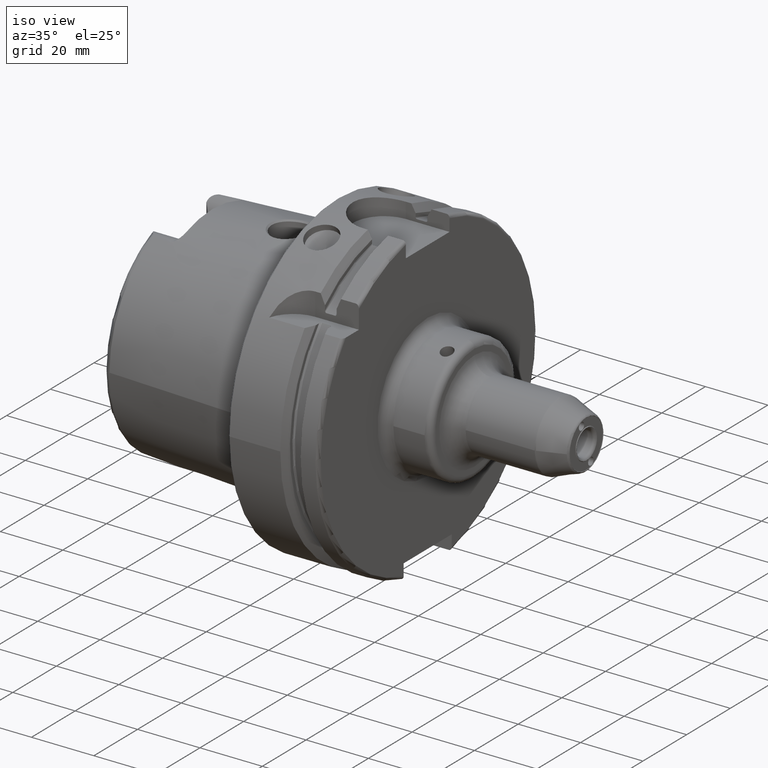
[diagram: clean part render]
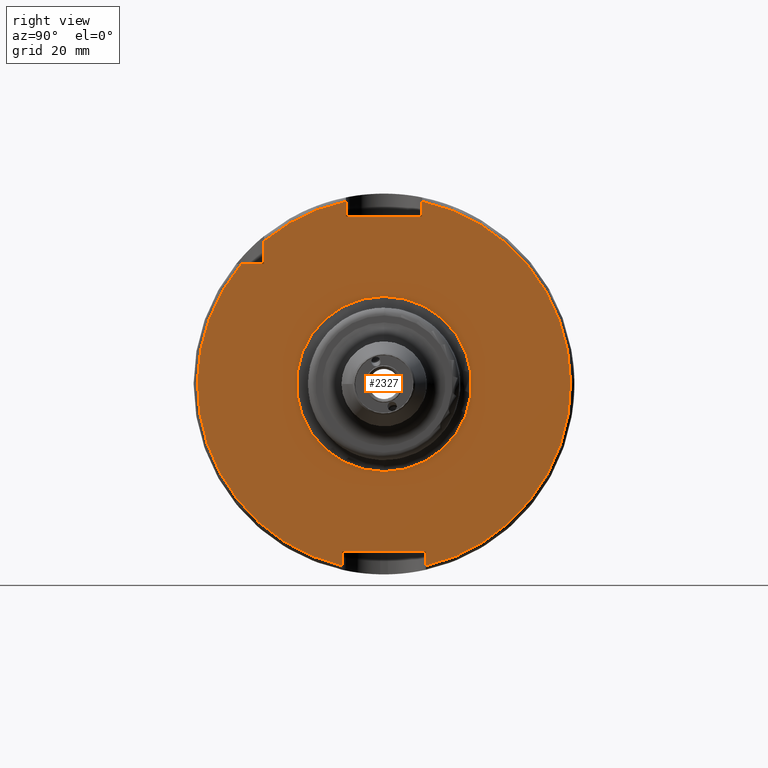
[diagram: tour spotlight — one face highlighted and labeled with its STEP entity id]
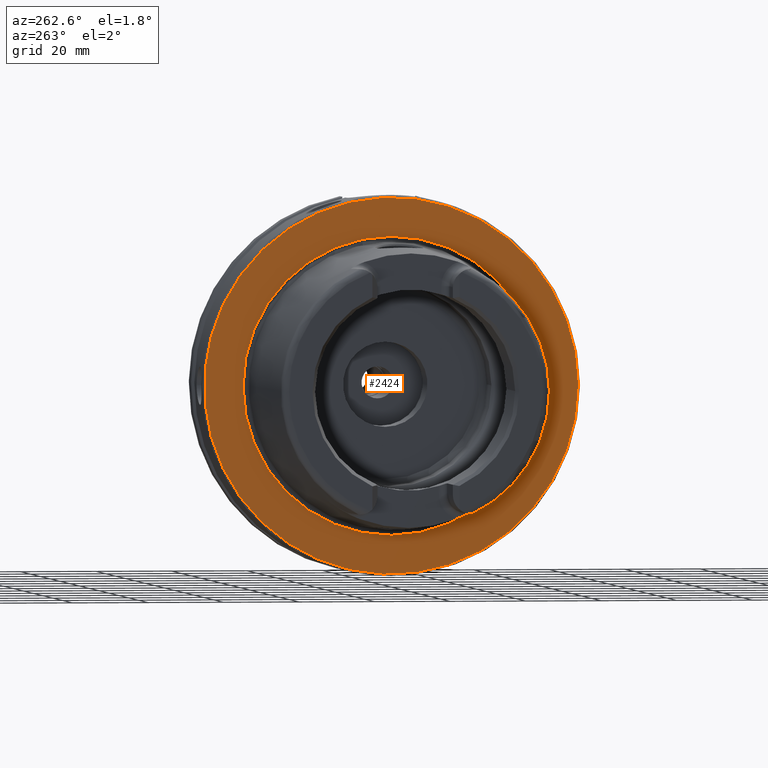
[diagram: tour spotlight — one face highlighted and labeled with its STEP entity id]
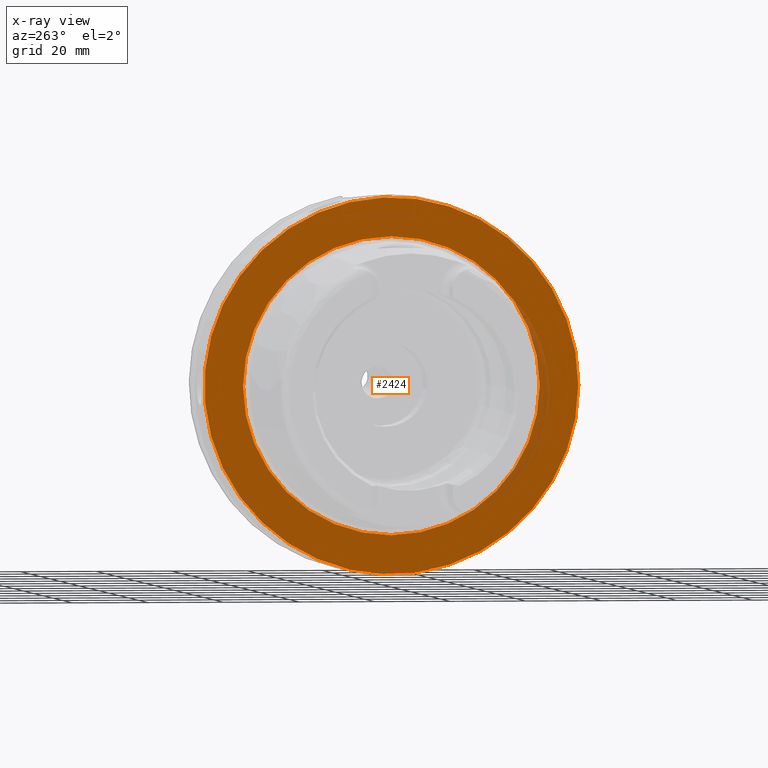
[diagram: x-ray of the same camera — body ghosted, this tour face saturated]
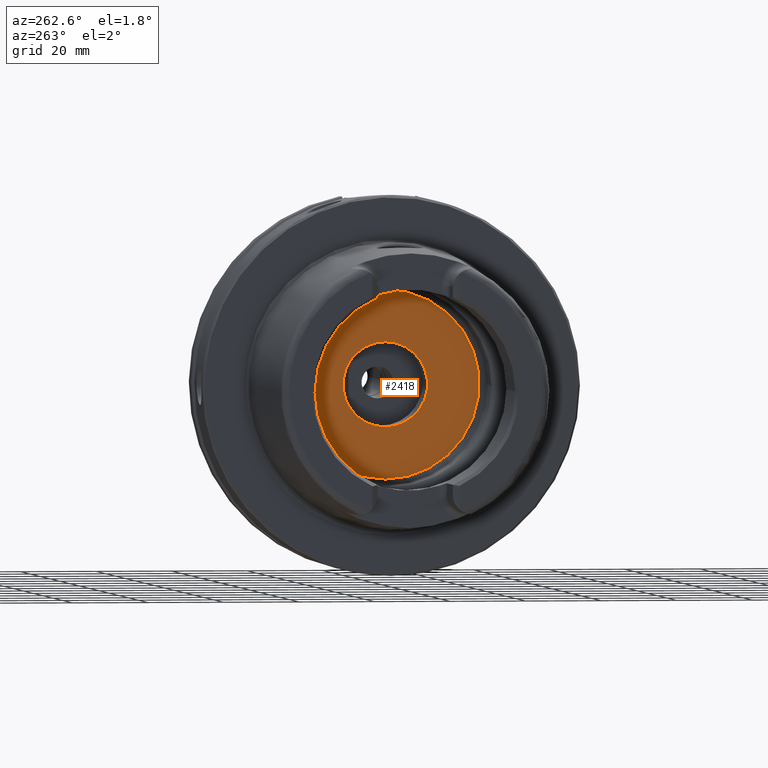
[diagram: tour spotlight — one face highlighted and labeled with its STEP entity id]
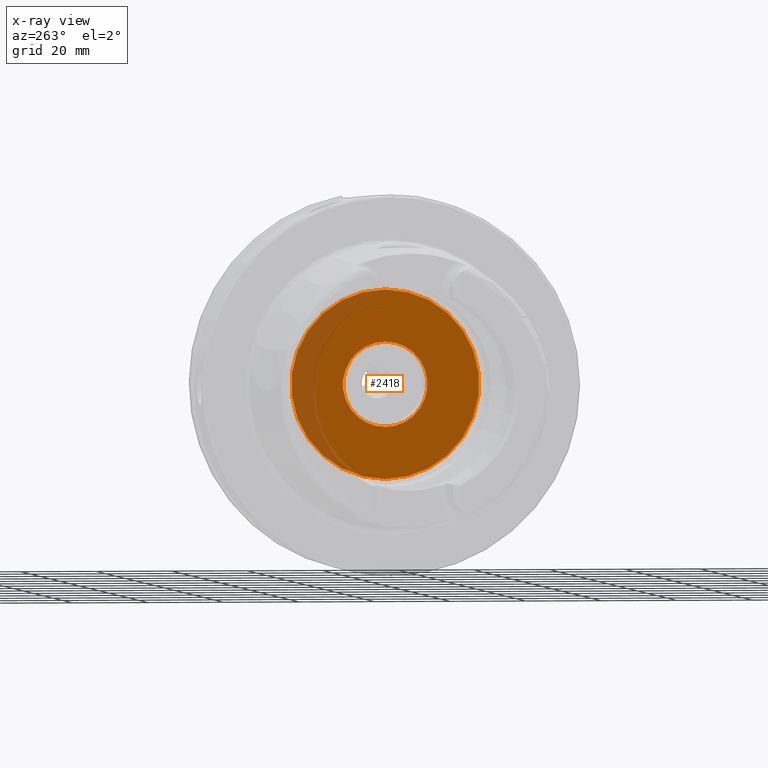
[diagram: x-ray of the same camera — body ghosted, this tour face saturated]
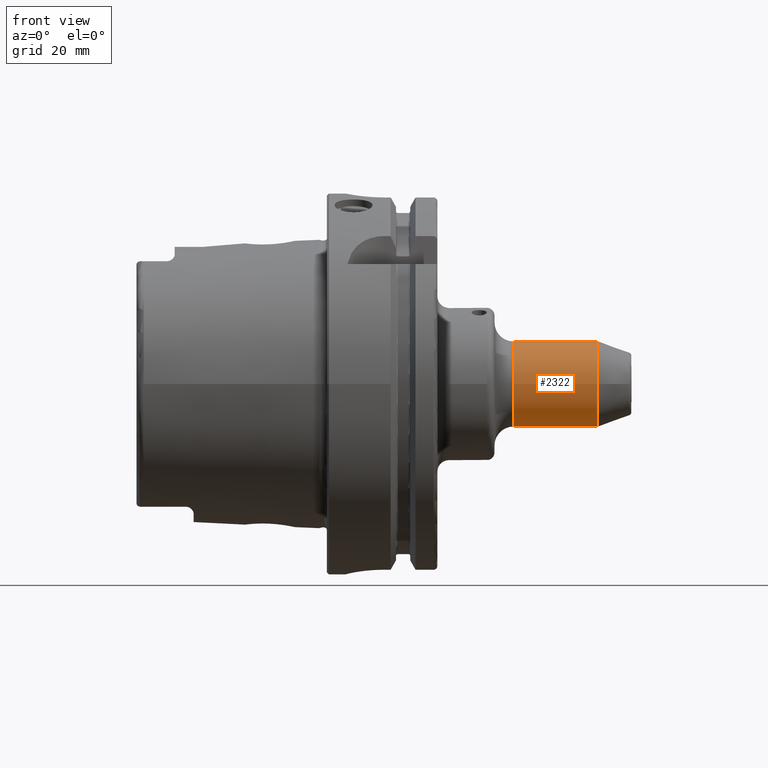
[diagram: tour spotlight — one face highlighted and labeled with its STEP entity id]
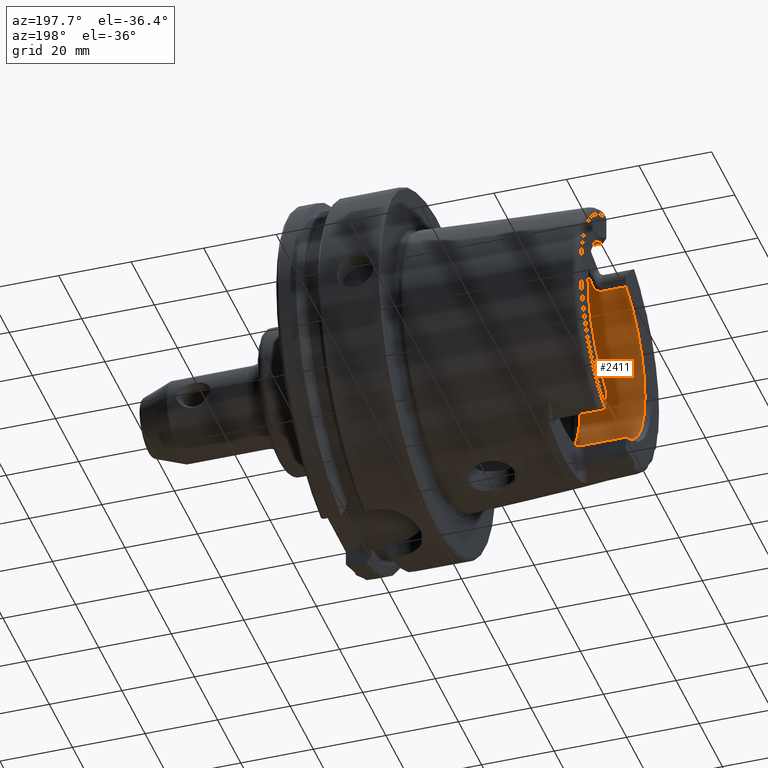
[diagram: tour spotlight — one face highlighted and labeled with its STEP entity id]
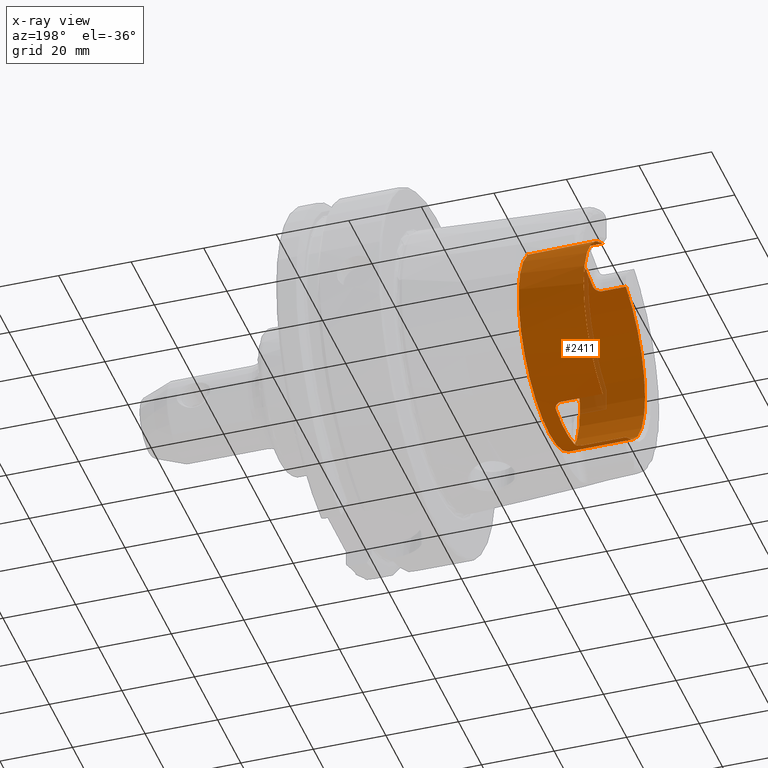
[diagram: x-ray of the same camera — body ghosted, this tour face saturated]
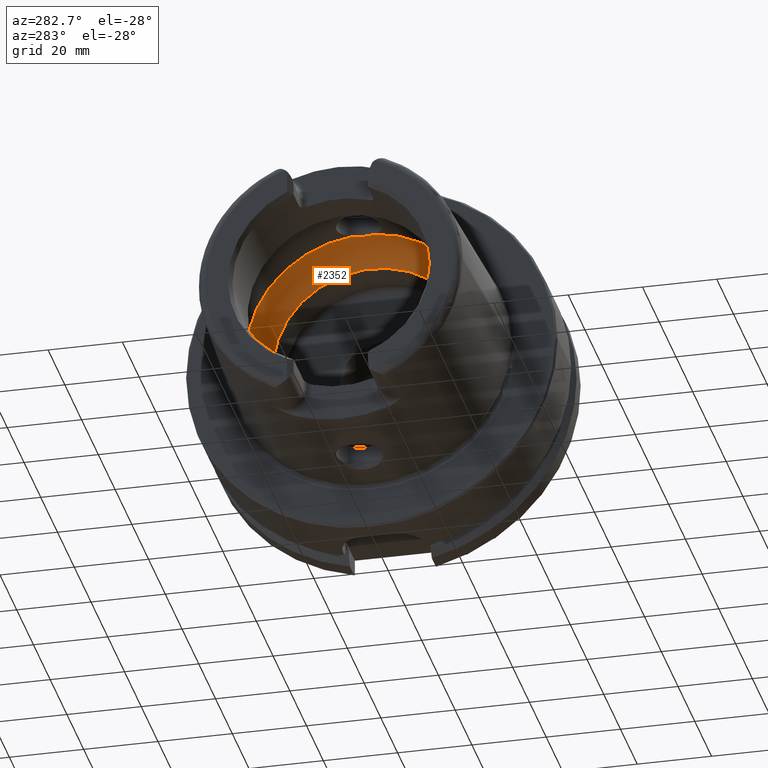
[diagram: tour spotlight — one face highlighted and labeled with its STEP entity id]
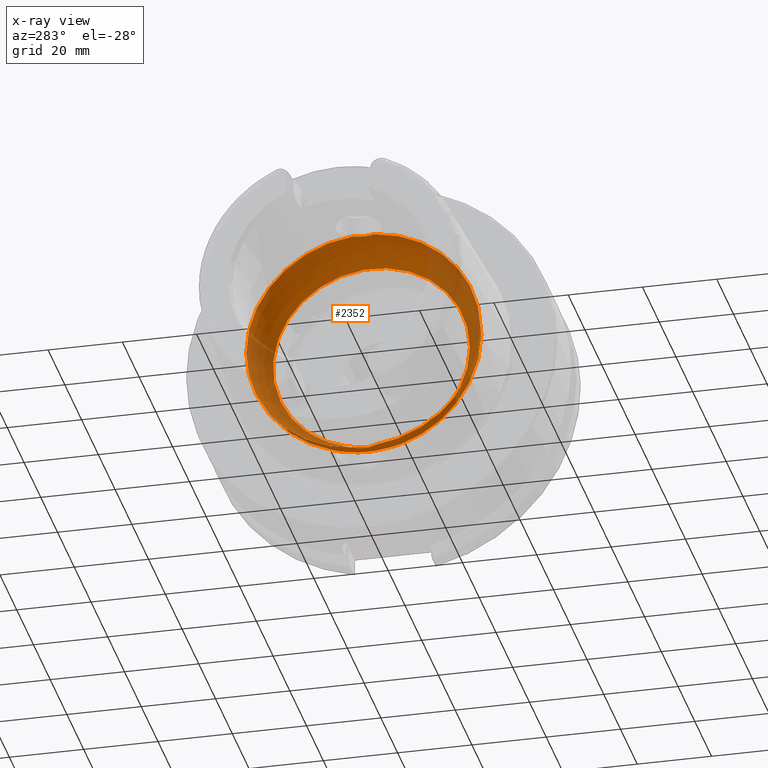
[diagram: x-ray of the same camera — body ghosted, this tour face saturated]
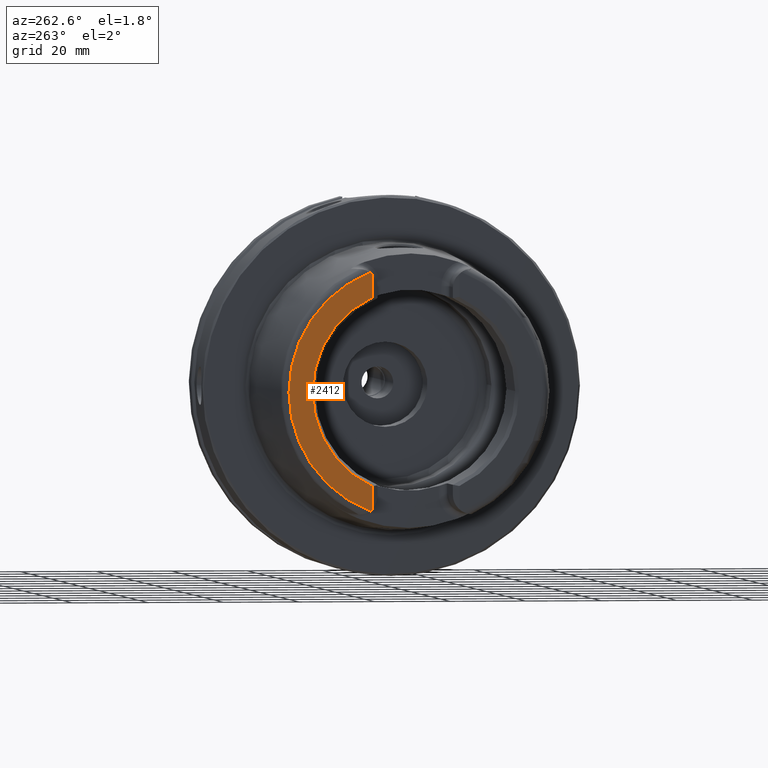
[diagram: tour spotlight — one face highlighted and labeled with its STEP entity id]
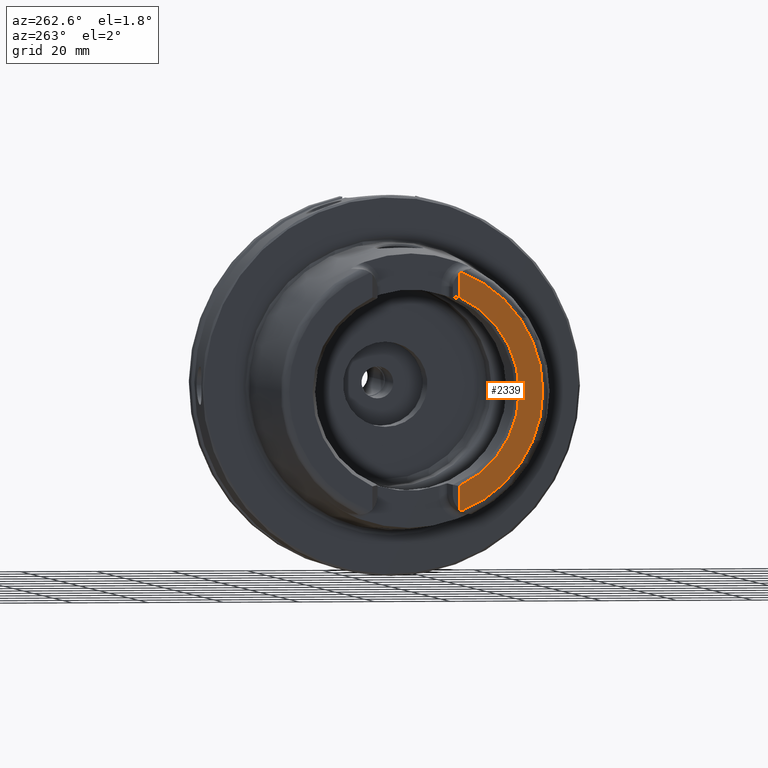
[diagram: tour spotlight — one face highlighted and labeled with its STEP entity id]
A machine part: a face-by-face anatomy tour. The part has 133 B-rep faces; the first image is the clean iso view, then the 8 largest visible faces are spotlighted one at a time (largest first), each with its STEP entity span.

Face 1 — right view, entity #2327. In plain terms, the highlighted planar face has unit normal (1, 0, 0).
Definition (entity closure, byte-faithful):
#196=LINE('',#3887,#316);
#197=LINE('',#3891,#317);
#198=LINE('',#3893,#318);
#199=LINE('',#3895,#319);
#200=LINE('',#3899,#320);
#201=LINE('',#3901,#321);
#202=LINE('',#3903,#322);
#203=LINE('',#3906,#323);
#316=VECTOR('',#2898,10.);
#317=VECTOR('',#2901,10.);
#318=VECTOR('',#2902,10.);
#319=VECTOR('',#2903,10.);
#320=VECTOR('',#2906,10.);
#321=VECTOR('',#2907,10.);
#322=VECTOR('',#2908,10.);
#323=VECTOR('',#2911,10.);
#448=FACE_BOUND('',#634,.T.);
#493=FACE_OUTER_BOUND('',#633,.T.);
#633=EDGE_LOOP('',(#1662,#1663,#1664,#1665,#1666,#1667,#1668,#1669,#1670,
#1671,#1672));
#634=EDGE_LOOP('',(#1673));
#789=CIRCLE('',#2521,23.);
#790=CIRCLE('',#2523,49.);
#791=CIRCLE('',#2524,49.);
#792=CIRCLE('',#2525,49.);
#955=VERTEX_POINT('',#3881);
#956=VERTEX_POINT('',#3885);
#957=VERTEX_POINT('',#3886);
#958=VERTEX_POINT('',#3888);
#959=VERTEX_POINT('',#3890);
#960=VERTEX_POINT('',#3892);
#961=VERTEX_POINT('',#3894);
#962=VERTEX_POINT('',#3896);
#963=VERTEX_POINT('',#3898);
#964=VERTEX_POINT('',#3900);
#965=VERTEX_POINT('',#3902);
#966=VERTEX_POINT('',#3904);
#1223=EDGE_CURVE('',#955,#955,#789,.T.);
#1224=EDGE_CURVE('',#956,#957,#196,.T.);
#1225=EDGE_CURVE('',#957,#958,#790,.T.);
#1226=EDGE_CURVE('',#958,#959,#197,.T.);
#1227=EDGE_CURVE('',#959,#960,#198,.T.);
#1228=EDGE_CURVE('',#960,#961,#199,.T.);
#1229=EDGE_CURVE('',#961,#962,#791,.T.);
#1230=EDGE_CURVE('',#962,#963,#200,.T.);
#1231=EDGE_CURVE('',#963,#964,#201,.T.);
#1232=EDGE_CURVE('',#964,#965,#202,.T.);
#1233=EDGE_CURVE('',#965,#966,#792,.T.);
#1234=EDGE_CURVE('',#966,#956,#203,.T.);
#1662=ORIENTED_EDGE('',*,*,#1224,.T.);
#1663=ORIENTED_EDGE('',*,*,#1225,.T.);
#1664=ORIENTED_EDGE('',*,*,#1226,.T.);
#1665=ORIENTED_EDGE('',*,*,#1227,.T.);
#1666=ORIENTED_EDGE('',*,*,#1228,.T.);
#1667=ORIENTED_EDGE('',*,*,#1229,.T.);
#1668=ORIENTED_EDGE('',*,*,#1230,.T.);
#1669=ORIENTED_EDGE('',*,*,#1231,.T.);
#1670=ORIENTED_EDGE('',*,*,#1232,.T.);
#1671=ORIENTED_EDGE('',*,*,#1233,.T.);
#1672=ORIENTED_EDGE('',*,*,#1234,.T.);
#1673=ORIENTED_EDGE('',*,*,#1223,.F.);
#2268=PLANE('',#2522);
#2327=ADVANCED_FACE('',(#493,#448),#2268,.T.);
#2521=AXIS2_PLACEMENT_3D('',#3883,#2894,#2895);
#2522=AXIS2_PLACEMENT_3D('',#3884,#2896,#2897);
#2523=AXIS2_PLACEMENT_3D('',#3889,#2899,#2900);
#2524=AXIS2_PLACEMENT_3D('',#3897,#2904,#2905);
#2525=AXIS2_PLACEMENT_3D('',#3905,#2909,#2910);
#2894=DIRECTION('center_axis',(1.,0.,0.));
#2895=DIRECTION('ref_axis',(0.,-1.,-1.22464679914735E-16));
#2896=DIRECTION('center_axis',(1.,0.,0.));
#2897=DIRECTION('ref_axis',(0.,0.,-1.));
#2898=DIRECTION('',(0.,-1.,0.));
#2899=DIRECTION('center_axis',(1.,0.,0.));
#2900=DIRECTION('ref_axis',(0.,0.,-1.));
#2901=DIRECTION('',(0.,0.,1.));
#2902=DIRECTION('',(0.,1.,0.));
#2903=DIRECTION('',(0.,0.,-1.));
#2904=DIRECTION('center_axis',(1.,0.,0.));
#2905=DIRECTION('ref_axis',(0.,0.,-1.));
#2906=DIRECTION('',(0.,0.,-1.));
#2907=DIRECTION('',(0.,-1.,0.));
#2908=DIRECTION('',(0.,0.,1.));
#2909=DIRECTION('center_axis',(1.,0.,0.));
#2910=DIRECTION('ref_axis',(0.,0.,-1.));
#2911=DIRECTION('',(0.,0.,-1.));
#3881=CARTESIAN_POINT('',(29.,-2.81668763803891E-15,-23.));
#3883=CARTESIAN_POINT('Origin',(29.,0.,0.));
#3884=CARTESIAN_POINT('Origin',(29.,0.,0.));
#3885=CARTESIAN_POINT('',(29.,-31.5,31.5));
#3886=CARTESIAN_POINT('',(29.,-37.5333185316726,31.5));
#3887=CARTESIAN_POINT('',(29.,-18.25,31.5));
#3888=CARTESIAN_POINT('',(29.,-11.,-47.7493455452533));
#3889=CARTESIAN_POINT('Origin',(29.,0.,0.));
#3890=CARTESIAN_POINT('',(29.,-11.,-44.));
#3891=CARTESIAN_POINT('',(29.,-11.,-22.));
#3892=CARTESIAN_POINT('',(29.,11.,-44.));
#3893=CARTESIAN_POINT('',(29.,-5.55111512312578E-16,-44.));
#3894=CARTESIAN_POINT('',(29.,11.,-47.7493455452533));
#3895=CARTESIAN_POINT('',(29.,11.,-22.));
#3896=CARTESIAN_POINT('',(29.,10.,47.9687398208458));
#3897=CARTESIAN_POINT('Origin',(29.,0.,0.));
#3898=CARTESIAN_POINT('',(29.,10.,44.));
#3899=CARTESIAN_POINT('',(29.,10.,22.));
#3900=CARTESIAN_POINT('',(29.,-10.,44.));
#3901=CARTESIAN_POINT('',(29.,0.,44.));
#3902=CARTESIAN_POINT('',(29.,-10.,47.9687398208458));
#3903=CARTESIAN_POINT('',(29.,-10.,22.));
#3904=CARTESIAN_POINT('',(29.,-31.5,37.5333185316726));
#3905=CARTESIAN_POINT('Origin',(29.,0.,0.));
#3906=CARTESIAN_POINT('',(29.,-31.5,15.75));

Face 2 — auxiliary view, entity #2424. An x-ray twin of the same camera follows (body ghosted, this face saturated) — the face is partly hidden behind the body. In plain terms, the highlighted planar face has unit normal (-1, 0, 0).
Definition (entity closure, byte-faithful):
#458=FACE_BOUND('',#741,.T.);
#590=FACE_OUTER_BOUND('',#740,.T.);
#740=EDGE_LOOP('',(#2215));
#741=EDGE_LOOP('',(#2216));
#892=CIRCLE('',#2727,39.2747800249997);
#893=CIRCLE('',#2729,49.5);
#1144=VERTEX_POINT('',#5396);
#1145=VERTEX_POINT('',#5400);
#1506=EDGE_CURVE('',#1144,#1144,#892,.T.);
#1507=EDGE_CURVE('',#1145,#1145,#893,.T.);
#2215=ORIENTED_EDGE('',*,*,#1507,.F.);
#2216=ORIENTED_EDGE('',*,*,#1506,.T.);
#2300=PLANE('',#2728);
#2424=ADVANCED_FACE('',(#590,#458),#2300,.T.);
#2727=AXIS2_PLACEMENT_3D('',#5398,#3406,#3407);
#2728=AXIS2_PLACEMENT_3D('',#5399,#3408,#3409);
#2729=AXIS2_PLACEMENT_3D('',#5401,#3410,#3411);
#3406=DIRECTION('center_axis',(1.,0.,0.));
#3407=DIRECTION('ref_axis',(0.,0.,-1.));
#3408=DIRECTION('center_axis',(-1.,0.,0.));
#3409=DIRECTION('ref_axis',(0.,0.,1.));
#3410=DIRECTION('center_axis',(1.,0.,0.));
#3411=DIRECTION('ref_axis',(0.,0.,-1.));
#5396=CARTESIAN_POINT('',(-1.04950770296597E-15,-39.2747800249997,-4.80977336448322E-15));
#5398=CARTESIAN_POINT('Origin',(0.,0.,0.));
#5399=CARTESIAN_POINT('Origin',(0.,49.5,0.));
#5400=CARTESIAN_POINT('',(1.28369537222284E-15,-49.5,-6.0620016557794E-15));
#5401=CARTESIAN_POINT('Origin',(0.,0.,0.));

Face 3 — auxiliary view, entity #2418. An x-ray twin of the same camera follows (body ghosted, this face saturated) — the face is partly hidden behind the body. In plain terms, the highlighted planar face has unit normal (1, 0, 0).
Definition (entity closure, byte-faithful):
#457=FACE_BOUND('',#734,.T.);
#584=FACE_OUTER_BOUND('',#733,.T.);
#733=EDGE_LOOP('',(#2185));
#734=EDGE_LOOP('',(#2186));
#876=CIRCLE('',#2701,11.188101);
#883=CIRCLE('',#2713,24.9);
#1131=VERTEX_POINT('',#5353);
#1137=VERTEX_POINT('',#5373);
#1485=EDGE_CURVE('',#1131,#1131,#876,.T.);
#1494=EDGE_CURVE('',#1137,#1137,#883,.T.);
#2185=ORIENTED_EDGE('',*,*,#1494,.T.);
#2186=ORIENTED_EDGE('',*,*,#1485,.T.);
#2299=PLANE('',#2712);
#2418=ADVANCED_FACE('',(#584,#457),#2299,.F.);
#2701=AXIS2_PLACEMENT_3D('',#5354,#3349,#3350);
#2712=AXIS2_PLACEMENT_3D('',#5372,#3373,#3374);
#2713=AXIS2_PLACEMENT_3D('',#5374,#3375,#3376);
#3349=DIRECTION('center_axis',(1.,0.,0.));
#3350=DIRECTION('ref_axis',(0.,0.,1.));
#3373=DIRECTION('center_axis',(1.,0.,0.));
#3374=DIRECTION('ref_axis',(0.,0.,-1.));
#3375=DIRECTION('center_axis',(-1.,0.,0.));
#3376=DIRECTION('ref_axis',(0.,0.,1.));
#5353=CARTESIAN_POINT('',(12.5,-1.37014720781873E-15,-11.188101));
#5354=CARTESIAN_POINT('Origin',(12.5,0.,0.));
#5372=CARTESIAN_POINT('Origin',(12.5,24.9,0.));
#5373=CARTESIAN_POINT('',(12.5,-3.04937052987691E-15,-24.9));
#5374=CARTESIAN_POINT('Origin',(12.5,0.,0.));

Face 4 — front view, entity #2322. In plain terms, the highlighted cylindrical surface (bore or boss wall) has radius 11.176 mm, axis along (1, 0, 0).
Definition (entity closure, byte-faithful):
#75=B_SPLINE_CURVE_WITH_KNOTS('',3,(#3756,#3757,#3758,#3759,#3760,#3761,
#3762,#3763,#3764,#3765),.UNSPECIFIED.,.F.,.F.,(4,2,2,2,4),(0.,0.160450408590257,
0.320900817180515,0.488377285899144,0.655853754617773),.UNSPECIFIED.);
#76=B_SPLINE_CURVE_WITH_KNOTS('',3,(#3766,#3767,#3768,#3769,#3770,#3771,
#3772,#3773,#3774,#3775,#3776,#3777,#3778,#3779,#3780,#3781,#3782,#3783,
#3784,#3785,#3786,#3787,#3788,#3789,#3790,#3791),.UNSPECIFIED.,.F.,.F.,
(4,2,2,2,2,2,2,2,2,2,2,2,4),(0.655853754617773,0.823330223336401,0.99080669205503,
1.15125710064529,1.31170750923555,1.4721579178258,1.63260832641606,1.80008479513469,
1.96756126385332,2.13503773257195,2.30251420129058,2.46296460988083,2.62341501847109),
 .UNSPECIFIED.);
#145=CYLINDRICAL_SURFACE('',#2509,11.176);
#195=LINE('',#3867,#315);
#315=VECTOR('',#2871,11.176);
#446=FACE_BOUND('',#627,.T.);
#488=FACE_OUTER_BOUND('',#626,.T.);
#626=EDGE_LOOP('',(#1636,#1637,#1638,#1639,#1640,#1641));
#627=EDGE_LOOP('',(#1642,#1643));
#780=CIRCLE('',#2507,11.176);
#781=CIRCLE('',#2508,11.176);
#782=CIRCLE('',#2510,11.176);
#783=CIRCLE('',#2511,11.176);
#939=VERTEX_POINT('',#3754);
#940=VERTEX_POINT('',#3755);
#949=VERTEX_POINT('',#3860);
#950=VERTEX_POINT('',#3862);
#951=VERTEX_POINT('',#3866);
#952=VERTEX_POINT('',#3868);
#1197=EDGE_CURVE('',#939,#940,#75,.T.);
#1198=EDGE_CURVE('',#940,#939,#76,.T.);
#1213=EDGE_CURVE('',#949,#950,#780,.T.);
#1214=EDGE_CURVE('',#950,#949,#781,.T.);
#1215=EDGE_CURVE('',#950,#951,#195,.T.);
#1216=EDGE_CURVE('',#952,#951,#782,.T.);
#1217=EDGE_CURVE('',#951,#952,#783,.T.);
#1636=ORIENTED_EDGE('',*,*,#1214,.F.);
#1637=ORIENTED_EDGE('',*,*,#1215,.T.);
#1638=ORIENTED_EDGE('',*,*,#1216,.F.);
#1639=ORIENTED_EDGE('',*,*,#1217,.F.);
#1640=ORIENTED_EDGE('',*,*,#1215,.F.);
#1641=ORIENTED_EDGE('',*,*,#1213,.F.);
#1642=ORIENTED_EDGE('',*,*,#1197,.T.);
#1643=ORIENTED_EDGE('',*,*,#1198,.T.);
#2322=ADVANCED_FACE('',(#488,#446),#145,.T.);
#2507=AXIS2_PLACEMENT_3D('',#3863,#2865,#2866);
#2508=AXIS2_PLACEMENT_3D('',#3864,#2867,#2868);
#2509=AXIS2_PLACEMENT_3D('',#3865,#2869,#2870);
#2510=AXIS2_PLACEMENT_3D('',#3869,#2872,#2873);
#2511=AXIS2_PLACEMENT_3D('',#3870,#2874,#2875);
#2865=DIRECTION('center_axis',(1.,0.,0.));
#2866=DIRECTION('ref_axis',(0.,-1.,1.83697019872103E-16));
#2867=DIRECTION('center_axis',(1.,0.,0.));
#2868=DIRECTION('ref_axis',(0.,-1.,1.83697019872103E-16));
#2869=DIRECTION('center_axis',(1.,0.,0.));
#2870=DIRECTION('ref_axis',(0.,1.,0.));
#2871=DIRECTION('',(-1.,0.,0.));
#2872=DIRECTION('center_axis',(-1.,0.,0.));
#2873=DIRECTION('ref_axis',(0.,-1.,1.83697019872103E-16));
#2874=DIRECTION('center_axis',(-1.,0.,0.));
#2875=DIRECTION('ref_axis',(0.,-1.,1.83697019872103E-16));
#3754=CARTESIAN_POINT('',(64.,10.4550468618303,3.94904686183032));
#3755=CARTESIAN_POINT('',(59.33,11.176,-5.71910055201813E-16));
#3756=CARTESIAN_POINT('Ctrl Pts',(64.,10.4550468618303,3.94904686183032));
#3757=CARTESIAN_POINT('Ctrl Pts',(63.4651653046991,10.4550468618303,3.94904686183032));
#3758=CARTESIAN_POINT('Ctrl Pts',(62.8892851132928,10.4878494051715,3.86556716131248));
#3759=CARTESIAN_POINT('Ctrl Pts',(61.8046622676809,10.6107140420064,3.51430576885846));
#3760=CARTESIAN_POINT('Ctrl Pts',(61.2957078850016,10.6991887742038,3.2466244540956));
#3761=CARTESIAN_POINT('Ctrl Pts',(60.438744735932,10.8768578052469,2.59172543091553));
#3762=CARTESIAN_POINT('Ctrl Pts',(60.035033016036,10.979393649552,2.14936439188367));
#3763=CARTESIAN_POINT('Ctrl Pts',(59.480112306603,11.1302692360648,1.13312111218164));
#3764=CARTESIAN_POINT('Ctrl Pts',(59.33,11.176,0.558254895728764));
#3765=CARTESIAN_POINT('Ctrl Pts',(59.33,11.176,1.52655665885959E-15));
#3766=CARTESIAN_POINT('Ctrl Pts',(59.33,11.176,9.0205620750794E-16));
#3767=CARTESIAN_POINT('Ctrl Pts',(59.33,11.176,-0.558254895728762));
#3768=CARTESIAN_POINT('Ctrl Pts',(59.480112306603,11.1302692360648,-1.13312111218164));
#3769=CARTESIAN_POINT('Ctrl Pts',(60.035033016036,10.979393649552,-2.14936439188367));
#3770=CARTESIAN_POINT('Ctrl Pts',(60.438744735932,10.8768578052469,-2.59172543091553));
#3771=CARTESIAN_POINT('Ctrl Pts',(61.2957078850016,10.6991887742038,-3.2466244540956));
#3772=CARTESIAN_POINT('Ctrl Pts',(61.8046622676809,10.6107140420064,-3.51430576885846));
#3773=CARTESIAN_POINT('Ctrl Pts',(62.8892851132928,10.4878494051715,-3.86556716131248));
#3774=CARTESIAN_POINT('Ctrl Pts',(63.4651653046991,10.4550468618303,-3.94904686183032));
#3775=CARTESIAN_POINT('Ctrl Pts',(64.5348346953009,10.4550468618303,-3.94904686183032));
#3776=CARTESIAN_POINT('Ctrl Pts',(65.1107148867072,10.4878494051715,-3.86556716131248));
#3777=CARTESIAN_POINT('Ctrl Pts',(66.1953377323191,10.6107140420064,-3.51430576885846));
#3778=CARTESIAN_POINT('Ctrl Pts',(66.7042921149984,10.6991887742038,-3.2466244540956));
#3779=CARTESIAN_POINT('Ctrl Pts',(67.561255264068,10.8768578052469,-2.59172543091553));
#3780=CARTESIAN_POINT('Ctrl Pts',(67.964966983964,10.979393649552,-2.14936439188367));
#3781=CARTESIAN_POINT('Ctrl Pts',(68.519887693397,11.1302692360648,-1.13312111218164));
#3782=CARTESIAN_POINT('Ctrl Pts',(68.67,11.176,-0.558254895728764));
#3783=CARTESIAN_POINT('Ctrl Pts',(68.67,11.176,0.558254895728763));
#3784=CARTESIAN_POINT('Ctrl Pts',(68.519887693397,11.1302692360648,1.13312111218164));
#3785=CARTESIAN_POINT('Ctrl Pts',(67.964966983964,10.979393649552,2.14936439188367));
#3786=CARTESIAN_POINT('Ctrl Pts',(67.561255264068,10.8768578052469,2.59172543091553));
#3787=CARTESIAN_POINT('Ctrl Pts',(66.7042921149984,10.6991887742038,3.2466244540956));
#3788=CARTESIAN_POINT('Ctrl Pts',(66.1953377323191,10.6107140420064,3.51430576885846));
#3789=CARTESIAN_POINT('Ctrl Pts',(65.1107148867072,10.4878494051715,3.86556716131248));
#3790=CARTESIAN_POINT('Ctrl Pts',(64.5348346953009,10.4550468618303,3.94904686183032));
#3791=CARTESIAN_POINT('Ctrl Pts',(64.,10.4550468618303,3.94904686183032));
#3860=CARTESIAN_POINT('',(71.0976847351036,-1.36866526272708E-15,11.176));
#3862=CARTESIAN_POINT('',(71.0976847351036,-11.176,-1.36866526272708E-15));
#3863=CARTESIAN_POINT('Origin',(71.0976847351036,0.,0.));
#3864=CARTESIAN_POINT('Origin',(71.0976847351036,0.,0.));
#3865=CARTESIAN_POINT('Origin',(57.637005857906,0.,0.));
#3866=CARTESIAN_POINT('',(49.,-11.176,-1.36866526272708E-15));
#3867=CARTESIAN_POINT('',(57.637005857906,-11.176,-1.36866526272708E-15));
#3868=CARTESIAN_POINT('',(49.,-1.36866526272708E-15,11.176));
#3869=CARTESIAN_POINT('Origin',(49.,0.,0.));
#3870=CARTESIAN_POINT('Origin',(49.,0.,0.));

Face 5 — auxiliary view, entity #2411. An x-ray twin of the same camera follows (body ghosted, this face saturated) — the face is partly hidden behind the body. In plain terms, the highlighted cylindrical surface (bore or boss wall) has radius 26.5 mm, axis along (-1, 0, 0).
Definition (entity closure, byte-faithful):
#132=B_SPLINE_CURVE_WITH_KNOTS('',3,(#5236,#5237,#5238,#5239,#5240,#5241,
#5242,#5243,#5244,#5245),.UNSPECIFIED.,.F.,.F.,(4,2,2,2,4),(0.307245873696209,
0.387318131676521,0.467390389656833,0.542677307505841,0.617964225354849),
 .UNSPECIFIED.);
#133=B_SPLINE_CURVE_WITH_KNOTS('',3,(#5254,#5255,#5256,#5257,#5258,#5259,
#5260,#5261,#5262,#5263),.UNSPECIFIED.,.F.,.F.,(4,2,2,2,4),(0.61796422535485,
0.694491364966707,0.771018504578565,0.849854597041439,0.928690689504313),
 .UNSPECIFIED.);
#134=B_SPLINE_CURVE_WITH_KNOTS('',3,(#5276,#5277,#5278,#5279,#5280,#5281,
#5282,#5283,#5284,#5285),.UNSPECIFIED.,.F.,.F.,(4,2,2,2,4),(0.617964225354849,
0.693251143203857,0.768538061052865,0.848610319033177,0.928682577013489),
 .UNSPECIFIED.);
#135=B_SPLINE_CURVE_WITH_KNOTS('',3,(#5305,#5306,#5307,#5308,#5309,#5310,
#5311,#5312,#5313,#5314),.UNSPECIFIED.,.F.,.F.,(4,2,2,2,4),(0.307245873696209,
0.387318131676521,0.467390389656833,0.542677307505841,0.617964225354849),
 .UNSPECIFIED.);
#173=CYLINDRICAL_SURFACE('',#2696,26.5);
#215=LINE('',#4020,#335);
#223=LINE('',#4095,#343);
#227=LINE('',#4159,#347);
#286=LINE('',#5301,#406);
#290=LINE('',#5349,#410);
#335=VECTOR('',#2951,10.);
#343=VECTOR('',#2997,10.);
#347=VECTOR('',#3019,10.);
#406=VECTOR('',#3298,10.);
#410=VECTOR('',#3342,26.5);
#577=FACE_OUTER_BOUND('',#724,.T.);
#724=EDGE_LOOP('',(#2144,#2145,#2146,#2147,#2148,#2149,#2150,#2151,#2152,
#2153,#2154,#2155,#2156,#2157,#2158,#2159,#2160));
#801=CIRCLE('',#2550,26.5);
#802=CIRCLE('',#2551,26.5);
#865=CIRCLE('',#2675,26.5);
#870=CIRCLE('',#2687,26.5);
#871=CIRCLE('',#2690,26.5);
#874=CIRCLE('',#2697,26.5);
#875=CIRCLE('',#2698,26.5);
#979=VERTEX_POINT('',#4010);
#982=VERTEX_POINT('',#4018);
#991=VERTEX_POINT('',#4067);
#993=VERTEX_POINT('',#4073);
#994=VERTEX_POINT('',#4075);
#1000=VERTEX_POINT('',#4093);
#1006=VERTEX_POINT('',#4126);
#1011=VERTEX_POINT('',#4158);
#1118=VERTEX_POINT('',#5234);
#1120=VERTEX_POINT('',#5253);
#1124=VERTEX_POINT('',#5274);
#1125=VERTEX_POINT('',#5275);
#1127=VERTEX_POINT('',#5295);
#1129=VERTEX_POINT('',#5346);
#1130=VERTEX_POINT('',#5347);
#1256=EDGE_CURVE('',#979,#982,#215,.T.);
#1269=EDGE_CURVE('',#993,#994,#801,.T.);
#1270=EDGE_CURVE('',#994,#991,#802,.T.);
#1279=EDGE_CURVE('',#993,#1000,#223,.T.);
#1292=EDGE_CURVE('',#1011,#1006,#227,.T.);
#1450=EDGE_CURVE('',#1118,#1000,#132,.T.);
#1454=EDGE_CURVE('',#1011,#1120,#133,.T.);
#1460=EDGE_CURVE('',#1124,#1125,#134,.T.);
#1466=EDGE_CURVE('',#1127,#1125,#865,.T.);
#1469=EDGE_CURVE('',#1124,#991,#286,.T.);
#1472=EDGE_CURVE('',#1127,#982,#135,.T.);
#1476=EDGE_CURVE('',#1118,#1120,#870,.T.);
#1478=EDGE_CURVE('',#979,#1006,#871,.T.);
#1482=EDGE_CURVE('',#1129,#1130,#874,.T.);
#1483=EDGE_CURVE('',#1129,#994,#290,.T.);
#1484=EDGE_CURVE('',#1130,#1129,#875,.T.);
#2144=ORIENTED_EDGE('',*,*,#1482,.F.);
#2145=ORIENTED_EDGE('',*,*,#1483,.T.);
#2146=ORIENTED_EDGE('',*,*,#1269,.F.);
#2147=ORIENTED_EDGE('',*,*,#1279,.T.);
#2148=ORIENTED_EDGE('',*,*,#1450,.F.);
#2149=ORIENTED_EDGE('',*,*,#1476,.T.);
#2150=ORIENTED_EDGE('',*,*,#1454,.F.);
#2151=ORIENTED_EDGE('',*,*,#1292,.T.);
#2152=ORIENTED_EDGE('',*,*,#1478,.F.);
#2153=ORIENTED_EDGE('',*,*,#1256,.T.);
#2154=ORIENTED_EDGE('',*,*,#1472,.F.);
#2155=ORIENTED_EDGE('',*,*,#1466,.T.);
#2156=ORIENTED_EDGE('',*,*,#1460,.F.);
#2157=ORIENTED_EDGE('',*,*,#1469,.T.);
#2158=ORIENTED_EDGE('',*,*,#1270,.F.);
#2159=ORIENTED_EDGE('',*,*,#1483,.F.);
#2160=ORIENTED_EDGE('',*,*,#1484,.F.);
#2411=ADVANCED_FACE('',(#577),#173,.F.);
#2550=AXIS2_PLACEMENT_3D('',#4076,#2975,#2976);
#2551=AXIS2_PLACEMENT_3D('',#4077,#2977,#2978);
#2675=AXIS2_PLACEMENT_3D('',#5296,#3291,#3292);
#2687=AXIS2_PLACEMENT_3D('',#5323,#3319,#3320);
#2690=AXIS2_PLACEMENT_3D('',#5338,#3325,#3326);
#2696=AXIS2_PLACEMENT_3D('',#5345,#3338,#3339);
#2697=AXIS2_PLACEMENT_3D('',#5348,#3340,#3341);
#2698=AXIS2_PLACEMENT_3D('',#5350,#3343,#3344);
#2951=DIRECTION('',(1.,0.,0.));
#2975=DIRECTION('center_axis',(1.,0.,0.));
#2976=DIRECTION('ref_axis',(0.,-1.,0.));
#2977=DIRECTION('center_axis',(1.,0.,0.));
#2978=DIRECTION('ref_axis',(0.,-1.,0.));
#2997=DIRECTION('',(1.,0.,0.));
#3019=DIRECTION('',(-1.,0.,0.));
#3291=DIRECTION('center_axis',(-1.,0.,0.));
#3292=DIRECTION('ref_axis',(0.,1.,0.));
#3298=DIRECTION('',(-1.,0.,0.));
#3319=DIRECTION('center_axis',(-1.,0.,0.));
#3320=DIRECTION('ref_axis',(0.,1.,0.));
#3325=DIRECTION('center_axis',(1.,0.,0.));
#3326=DIRECTION('ref_axis',(0.,-1.,0.));
#3338=DIRECTION('center_axis',(-1.,0.,0.));
#3339=DIRECTION('ref_axis',(0.,1.,0.));
#3340=DIRECTION('center_axis',(-1.,0.,0.));
#3341=DIRECTION('ref_axis',(0.,0.,1.));
#3342=DIRECTION('',(-1.,0.,0.));
#3343=DIRECTION('center_axis',(-1.,0.,0.));
#3344=DIRECTION('ref_axis',(0.,0.,1.));
#4010=CARTESIAN_POINT('',(-48.5,10.01,-24.5367051577835));
#4018=CARTESIAN_POINT('',(-37.,10.01,-24.5367051577835));
#4020=CARTESIAN_POINT('',(-40.2903629710818,10.01,-24.5367051577835));
#4067=CARTESIAN_POINT('',(-48.5,-10.01,-24.5367051577835));
#4073=CARTESIAN_POINT('',(-48.5,-10.01,24.5367051577835));
#4075=CARTESIAN_POINT('',(-48.5,-26.5,3.24531401774049E-15));
#4076=CARTESIAN_POINT('Origin',(-48.5,0.,0.));
#4077=CARTESIAN_POINT('Origin',(-48.5,0.,0.));
#4093=CARTESIAN_POINT('',(-42.,-10.01,24.5367051577835));
#4095=CARTESIAN_POINT('',(-40.2903629710818,-10.01,24.5367051577835));
#4126=CARTESIAN_POINT('',(-48.5,10.01,24.5367051577835));
#4158=CARTESIAN_POINT('',(-42.,10.01,24.5367051577835));
#4159=CARTESIAN_POINT('',(-40.2903629710818,10.01,24.5367051577835));
#5234=CARTESIAN_POINT('',(-40.,-8.01,25.2604414054862));
#5236=CARTESIAN_POINT('Ctrl Pts',(-40.,-8.01,25.2604414054862));
#5237=CARTESIAN_POINT('Ctrl Pts',(-40.,-8.26442271458071,25.1797648285777));
#5238=CARTESIAN_POINT('Ctrl Pts',(-40.0513332778729,-8.53503831367686,25.0892968127514));
#5239=CARTESIAN_POINT('Ctrl Pts',(-40.2604388709541,-9.03317850506395,24.9142806373643));
#5240=CARTESIAN_POINT('Ctrl Pts',(-40.4182028025644,-9.2607746884821,24.8299262887475));
#5241=CARTESIAN_POINT('Ctrl Pts',(-40.7762398849713,-9.61038047170956,24.6966285655713));
#5242=CARTESIAN_POINT('Ctrl Pts',(-40.996584045901,-9.75993653512726,24.6374761492843));
#5243=CARTESIAN_POINT('Ctrl Pts',(-41.4829332858843,-9.95981108540838,24.557356442995));
#5244=CARTESIAN_POINT('Ctrl Pts',(-41.74904360717,-10.01,24.5367051577835));
#5245=CARTESIAN_POINT('Ctrl Pts',(-42.,-10.01,24.5367051577835));
#5253=CARTESIAN_POINT('',(-40.,8.01,25.2604414054862));
#5254=CARTESIAN_POINT('Ctrl Pts',(-42.,10.01,24.5367051577835));
#5255=CARTESIAN_POINT('Ctrl Pts',(-41.7449095346271,10.01,24.5367051577835));
#5256=CARTESIAN_POINT('Ctrl Pts',(-41.4747619014646,9.95816285425487,24.5580391842641));
#5257=CARTESIAN_POINT('Ctrl Pts',(-40.9823460284033,9.75229566196282,24.640515927451));
#5258=CARTESIAN_POINT('Ctrl Pts',(-40.7599680829949,9.59839520774108,24.7013267120605));
#5259=CARTESIAN_POINT('Ctrl Pts',(-40.4063494382929,9.24477656303909,24.8358806096526));
#5260=CARTESIAN_POINT('Ctrl Pts',(-40.2529543645221,9.01930384320105,24.9192727261742));
#5261=CARTESIAN_POINT('Ctrl Pts',(-40.049776768453,8.52719637786957,25.0919293188873));
#5262=CARTESIAN_POINT('Ctrl Pts',(-40.,8.26049490494288,25.1810103236462));
#5263=CARTESIAN_POINT('Ctrl Pts',(-40.,8.01,25.2604414054862));
#5274=CARTESIAN_POINT('',(-37.,-10.01,-24.5367051577835));
#5275=CARTESIAN_POINT('',(-35.,-8.01,-25.2604414054862));
#5276=CARTESIAN_POINT('Ctrl Pts',(-37.,-10.01,-24.5367051577835));
#5277=CARTESIAN_POINT('Ctrl Pts',(-36.74904360717,-10.01,-24.5367051577835));
#5278=CARTESIAN_POINT('Ctrl Pts',(-36.4829332858843,-9.95981108540838,-24.557356442995));
#5279=CARTESIAN_POINT('Ctrl Pts',(-35.9965840459011,-9.75993653512726,-24.6374761492843));
#5280=CARTESIAN_POINT('Ctrl Pts',(-35.7762398849713,-9.61038047170956,-24.6966285655713));
#5281=CARTESIAN_POINT('Ctrl Pts',(-35.4182028025644,-9.2607746884821,-24.8299262887475));
#5282=CARTESIAN_POINT('Ctrl Pts',(-35.2604388709541,-9.03317850506395,-24.9142806373643));
#5283=CARTESIAN_POINT('Ctrl Pts',(-35.0513332778729,-8.53503831367686,-25.0892968127514));
#5284=CARTESIAN_POINT('Ctrl Pts',(-35.,-8.26442271458071,-25.1797648285777));
#5285=CARTESIAN_POINT('Ctrl Pts',(-35.,-8.01,-25.2604414054862));
#5295=CARTESIAN_POINT('',(-35.,8.01,-25.2604414054862));
#5296=CARTESIAN_POINT('Origin',(-35.,0.,0.));
#5301=CARTESIAN_POINT('',(-40.2903629710818,-10.01,-24.5367051577835));
#5305=CARTESIAN_POINT('Ctrl Pts',(-35.,8.01,-25.2604414054862));
#5306=CARTESIAN_POINT('Ctrl Pts',(-35.,8.26442271458071,-25.1797648285777));
#5307=CARTESIAN_POINT('Ctrl Pts',(-35.0513332778729,8.53503831367686,-25.0892968127514));
#5308=CARTESIAN_POINT('Ctrl Pts',(-35.2604388709541,9.03317850506395,-24.9142806373643));
#5309=CARTESIAN_POINT('Ctrl Pts',(-35.4182028025644,9.2607746884821,-24.8299262887475));
#5310=CARTESIAN_POINT('Ctrl Pts',(-35.7762398849713,9.61038047170956,-24.6966285655713));
#5311=CARTESIAN_POINT('Ctrl Pts',(-35.9965840459011,9.75993653512726,-24.6374761492843));
#5312=CARTESIAN_POINT('Ctrl Pts',(-36.4829332858843,9.95981108540838,-24.557356442995));
#5313=CARTESIAN_POINT('Ctrl Pts',(-36.74904360717,10.01,-24.5367051577835));
#5314=CARTESIAN_POINT('Ctrl Pts',(-37.,10.01,-24.5367051577835));
#5323=CARTESIAN_POINT('Origin',(-40.,0.,0.));
#5338=CARTESIAN_POINT('Origin',(-48.5,0.,0.));
#5345=CARTESIAN_POINT('Origin',(-40.2903629710818,0.,0.));
#5346=CARTESIAN_POINT('',(-30.5807259421637,-26.5,3.24531401774049E-15));
#5347=CARTESIAN_POINT('',(-30.5807259421637,-3.24531401774049E-15,-26.5));
#5348=CARTESIAN_POINT('Origin',(-30.5807259421637,0.,0.));
#5349=CARTESIAN_POINT('',(-40.2903629710818,-26.5,3.24531401774049E-15));
#5350=CARTESIAN_POINT('Origin',(-30.5807259421637,0.,0.));

Face 6 — auxiliary view, entity #2352. An x-ray twin of the same camera follows (body ghosted, this face saturated) — the face is partly hidden behind the body. In plain terms, the highlighted toroidal blend (fillet) surface has major radius 19.5 mm and minor (blend) radius 12 mm.
Definition (entity closure, byte-faithful):
#37=TOROIDAL_SURFACE('',#2583,19.5,12.);
#100=B_SPLINE_CURVE_WITH_KNOTS('',3,(#4478,#4479,#4480,#4481,#4482,#4483,
#4484,#4485,#4486,#4487),.UNSPECIFIED.,.F.,.F.,(4,2,2,2,4),(-0.606113644645353,
-0.532141714710631,-0.407956541554012,-0.344441109025195,-0.303157612487306),
 .UNSPECIFIED.);
#102=B_SPLINE_CURVE_WITH_KNOTS('',3,(#4520,#4521,#4522,#4523,#4524,#4525,
#4526,#4527,#4528,#4529),.UNSPECIFIED.,.F.,.F.,(4,2,2,2,4),(-0.303157612487306,
-0.297161587155601,-0.247817233363509,-0.174446982686599,0.),
 .UNSPECIFIED.);
#105=B_SPLINE_CURVE_WITH_KNOTS('',3,(#4670,#4671,#4672,#4673,#4674,#4675,
#4676,#4677,#4678,#4679),.UNSPECIFIED.,.F.,.F.,(4,2,2,2,4),(-0.606113644645388,
-0.532141714710621,-0.407956541553997,-0.344441109025146,-0.303157612487227),
 .UNSPECIFIED.);
#107=B_SPLINE_CURVE_WITH_KNOTS('',3,(#4712,#4713,#4714,#4715,#4716,#4717,
#4718,#4719,#4720,#4721),.UNSPECIFIED.,.F.,.F.,(4,2,2,2,4),(-0.303157612487227,
-0.297161587155532,-0.247817233363497,-0.174446982686607,0.),
 .UNSPECIFIED.);
#518=FACE_OUTER_BOUND('',#662,.T.);
#662=EDGE_LOOP('',(#1821,#1822,#1823,#1824,#1825,#1826,#1827,#1828,#1829,
#1830,#1831));
#815=CIRCLE('',#2578,31.5);
#818=CIRCLE('',#2581,31.5);
#819=CIRCLE('',#2582,31.5);
#820=CIRCLE('',#2584,26.5);
#821=CIRCLE('',#2585,26.5);
#822=CIRCLE('',#2586,12.);
#1028=VERTEX_POINT('',#4475);
#1029=VERTEX_POINT('',#4477);
#1030=VERTEX_POINT('',#4488);
#1033=VERTEX_POINT('',#4668);
#1034=VERTEX_POINT('',#4669);
#1035=VERTEX_POINT('',#4680);
#1036=VERTEX_POINT('',#4724);
#1039=VERTEX_POINT('',#4734);
#1040=VERTEX_POINT('',#4735);
#1316=EDGE_CURVE('',#1029,#1028,#100,.T.);
#1318=EDGE_CURVE('',#1028,#1030,#102,.T.);
#1322=EDGE_CURVE('',#1033,#1034,#105,.T.);
#1324=EDGE_CURVE('',#1034,#1035,#107,.T.);
#1326=EDGE_CURVE('',#1036,#1033,#815,.T.);
#1330=EDGE_CURVE('',#1030,#1036,#818,.T.);
#1331=EDGE_CURVE('',#1035,#1029,#819,.T.);
#1332=EDGE_CURVE('',#1039,#1040,#820,.T.);
#1333=EDGE_CURVE('',#1040,#1039,#821,.T.);
#1334=EDGE_CURVE('',#1040,#1028,#822,.T.);
#1821=ORIENTED_EDGE('',*,*,#1332,.F.);
#1822=ORIENTED_EDGE('',*,*,#1333,.F.);
#1823=ORIENTED_EDGE('',*,*,#1334,.T.);
#1824=ORIENTED_EDGE('',*,*,#1318,.T.);
#1825=ORIENTED_EDGE('',*,*,#1330,.T.);
#1826=ORIENTED_EDGE('',*,*,#1326,.T.);
#1827=ORIENTED_EDGE('',*,*,#1322,.T.);
#1828=ORIENTED_EDGE('',*,*,#1324,.T.);
#1829=ORIENTED_EDGE('',*,*,#1331,.T.);
#1830=ORIENTED_EDGE('',*,*,#1316,.T.);
#1831=ORIENTED_EDGE('',*,*,#1334,.F.);
#2352=ADVANCED_FACE('',(#518),#37,.F.);
#2578=AXIS2_PLACEMENT_3D('',#4725,#3046,#3047);
#2581=AXIS2_PLACEMENT_3D('',#4731,#3053,#3054);
#2582=AXIS2_PLACEMENT_3D('',#4732,#3055,#3056);
#2583=AXIS2_PLACEMENT_3D('',#4733,#3057,#3058);
#2584=AXIS2_PLACEMENT_3D('',#4736,#3059,#3060);
#2585=AXIS2_PLACEMENT_3D('',#4737,#3061,#3062);
#2586=AXIS2_PLACEMENT_3D('',#4738,#3063,#3064);
#3046=DIRECTION('center_axis',(-1.,0.,0.));
#3047=DIRECTION('ref_axis',(0.,0.,1.));
#3053=DIRECTION('center_axis',(-1.,0.,0.));
#3054=DIRECTION('ref_axis',(0.,0.,1.));
#3055=DIRECTION('center_axis',(-1.,0.,0.));
#3056=DIRECTION('ref_axis',(0.,0.,1.));
#3057=DIRECTION('center_axis',(-1.,0.,0.));
#3058=DIRECTION('ref_axis',(0.,0.,1.));
#3059=DIRECTION('center_axis',(-1.,0.,0.));
#3060=DIRECTION('ref_axis',(0.,0.,1.));
#3061=DIRECTION('center_axis',(-1.,0.,0.));
#3062=DIRECTION('ref_axis',(0.,0.,1.));
#3063=DIRECTION('center_axis',(0.,1.,-1.22464679914735E-16));
#3064=DIRECTION('ref_axis',(0.,-1.22464679914735E-16,-1.));
#4475=CARTESIAN_POINT('',(-9.,8.53116613017712E-16,-31.4767398822284));
#4477=CARTESIAN_POINT('',(-9.74679434480896,2.89893607109041,-31.3663222207471));
#4478=CARTESIAN_POINT('Ctrl Pts',(-9.74679434480898,2.89893607109041,-31.3663222207471));
#4479=CARTESIAN_POINT('Ctrl Pts',(-9.62803941549252,2.68373847757038,-31.3862111979079));
#4480=CARTESIAN_POINT('Ctrl Pts',(-9.52250794022164,2.46123932380009,-31.4027818190648));
#4481=CARTESIAN_POINT('Ctrl Pts',(-9.27707880675082,1.84905941644996,-31.4398086116956));
#4482=CARTESIAN_POINT('Ctrl Pts',(-9.16318715371328,1.45014848778478,-31.4552463037839));
#4483=CARTESIAN_POINT('Ctrl Pts',(-9.05448554629564,0.83406948853474,-31.4697090180031));
#4484=CARTESIAN_POINT('Ctrl Pts',(-9.02875508102837,0.623753972628784,-31.4730355369691));
#4485=CARTESIAN_POINT('Ctrl Pts',(-9.00473516300901,0.275210595137741,-31.4761342948647));
#4486=CARTESIAN_POINT('Ctrl Pts',(-9.,0.13762179988616,-31.4767398822284));
#4487=CARTESIAN_POINT('Ctrl Pts',(-9.,9.71445146547012E-16,-31.4767398822284));
#4488=CARTESIAN_POINT('',(-9.74679434480896,-2.89893607109041,-31.3663222207471));
#4520=CARTESIAN_POINT('Ctrl Pts',(-9.,9.83483832277069E-16,-31.4767398822284));
#4521=CARTESIAN_POINT('Ctrl Pts',(-9.,-0.0199882245331354,-31.4767398822284));
#4522=CARTESIAN_POINT('Ctrl Pts',(-9.00009988237686,-0.0399771452902417,
-31.4767270717783));
#4523=CARTESIAN_POINT('Ctrl Pts',(-9.00194380057016,-0.224464346212316,
-31.4764905359115));
#4524=CARTESIAN_POINT('Ctrl Pts',(-9.01035297969853,-0.388827878343727,
-31.4754151841588));
#4525=CARTESIAN_POINT('Ctrl Pts',(-9.0480310904853,-0.796171644009328,-31.4705320701686));
#4526=CARTESIAN_POINT('Ctrl Pts',(-9.08543037238412,-1.03809779370842,-31.4656619259797));
#4527=CARTESIAN_POINT('Ctrl Pts',(-9.26119500081336,-1.84501079512327,-31.441850680052));
#4528=CARTESIAN_POINT('Ctrl Pts',(-9.4667592962906,-2.39148034786879,-31.4132222586341));
#4529=CARTESIAN_POINT('Ctrl Pts',(-9.74679434480898,-2.89893607109041,-31.3663222207471));
#4668=CARTESIAN_POINT('',(-9.74679434480896,-2.89893607109042,31.3663222207471));
#4669=CARTESIAN_POINT('',(-8.99999999999999,7.8372767397864E-16,31.4767398822284));
#4670=CARTESIAN_POINT('Ctrl Pts',(-9.74679434480898,-2.89893607109042,31.3663222207471));
#4671=CARTESIAN_POINT('Ctrl Pts',(-9.62803941549257,-2.6837384775705,31.3862111979079));
#4672=CARTESIAN_POINT('Ctrl Pts',(-9.52250794022172,-2.46123932380032,31.4027818190648));
#4673=CARTESIAN_POINT('Ctrl Pts',(-9.27707880675083,-1.84905941645004,31.4398086116956));
#4674=CARTESIAN_POINT('Ctrl Pts',(-9.16318715371328,-1.45014848778485,31.4552463037839));
#4675=CARTESIAN_POINT('Ctrl Pts',(-9.05448554629561,-0.834069488534672,
31.4697090180031));
#4676=CARTESIAN_POINT('Ctrl Pts',(-9.02875508102836,-0.623753972628598,
31.4730355369691));
#4677=CARTESIAN_POINT('Ctrl Pts',(-9.00473516300902,-0.275210595137865,
31.4761342948647));
#4678=CARTESIAN_POINT('Ctrl Pts',(-8.99999999999999,-0.137621799886392,
31.4767398822284));
#4679=CARTESIAN_POINT('Ctrl Pts',(-8.99999999999999,9.0205620750794E-16,
31.4767398822284));
#4680=CARTESIAN_POINT('',(-9.74679434480896,2.89893607109042,31.3663222207471));
#4712=CARTESIAN_POINT('Ctrl Pts',(-8.99999999999999,8.7920239009422E-16,
31.4767398822284));
#4713=CARTESIAN_POINT('Ctrl Pts',(-8.99999999999999,0.0199882245331231,
31.4767398822284));
#4714=CARTESIAN_POINT('Ctrl Pts',(-9.00009988237684,0.0399771452902225,
31.4767270717783));
#4715=CARTESIAN_POINT('Ctrl Pts',(-9.00194380057014,0.224464346212396,31.4764905359115));
#4716=CARTESIAN_POINT('Ctrl Pts',(-9.01035297969852,0.388827878343765,31.4754151841588));
#4717=CARTESIAN_POINT('Ctrl Pts',(-9.0480310904853,0.79617164400948,31.4705320701686));
#4718=CARTESIAN_POINT('Ctrl Pts',(-9.08543037238414,1.03809779370849,31.4656619259797));
#4719=CARTESIAN_POINT('Ctrl Pts',(-9.26119500081334,1.84501079512323,31.441850680052));
#4720=CARTESIAN_POINT('Ctrl Pts',(-9.46675929629059,2.39148034786878,31.4132222586341));
#4721=CARTESIAN_POINT('Ctrl Pts',(-9.74679434480898,2.89893607109043,31.3663222207471));
#4724=CARTESIAN_POINT('',(-9.74679434480896,-31.5,3.85763741731416E-15));
#4725=CARTESIAN_POINT('Origin',(-9.74679434480896,0.,0.));
#4731=CARTESIAN_POINT('Origin',(-9.74679434480896,0.,0.));
#4732=CARTESIAN_POINT('Origin',(-9.74679434480896,0.,0.));
#4733=CARTESIAN_POINT('Origin',(-9.74679434480896,0.,0.));
#4734=CARTESIAN_POINT('',(0.,-26.5,3.24531401774049E-15));
#4735=CARTESIAN_POINT('',(0.,-3.24531401774049E-15,-26.5));
#4736=CARTESIAN_POINT('Origin',(0.,0.,0.));
#4737=CARTESIAN_POINT('Origin',(0.,0.,0.));
#4738=CARTESIAN_POINT('Origin',(-9.74679434480896,-2.38806125833734E-15,
-19.5));

Face 7 — auxiliary view, entity #2412. In plain terms, the highlighted planar face has unit normal (-1, 0, 0).
Definition (entity closure, byte-faithful):
#212=LINE('',#4014,#332);
#224=LINE('',#4125,#344);
#332=VECTOR('',#2946,10.);
#344=VECTOR('',#3006,10.);
#578=FACE_OUTER_BOUND('',#725,.T.);
#725=EDGE_LOOP('',(#2161,#2162,#2163,#2164,#2165,#2166));
#797=CIRCLE('',#2541,4.88);
#808=CIRCLE('',#2566,4.88);
#872=CIRCLE('',#2691,27.3660254037844);
#873=CIRCLE('',#2695,33.6001839277785);
#977=VERTEX_POINT('',#4007);
#980=VERTEX_POINT('',#4012);
#983=VERTEX_POINT('',#4022);
#1004=VERTEX_POINT('',#4122);
#1005=VERTEX_POINT('',#4124);
#1010=VERTEX_POINT('',#4143);
#1253=EDGE_CURVE('',#980,#977,#212,.T.);
#1257=EDGE_CURVE('',#983,#977,#797,.T.);
#1284=EDGE_CURVE('',#1004,#1005,#224,.T.);
#1291=EDGE_CURVE('',#1004,#1010,#808,.T.);
#1479=EDGE_CURVE('',#1005,#980,#872,.T.);
#1481=EDGE_CURVE('',#983,#1010,#873,.T.);
#2161=ORIENTED_EDGE('',*,*,#1253,.F.);
#2162=ORIENTED_EDGE('',*,*,#1479,.F.);
#2163=ORIENTED_EDGE('',*,*,#1284,.F.);
#2164=ORIENTED_EDGE('',*,*,#1291,.T.);
#2165=ORIENTED_EDGE('',*,*,#1481,.F.);
#2166=ORIENTED_EDGE('',*,*,#1257,.T.);
#2296=PLANE('',#2699);
#2412=ADVANCED_FACE('',(#578),#2296,.T.);
#2541=AXIS2_PLACEMENT_3D('',#4023,#2954,#2955);
#2566=AXIS2_PLACEMENT_3D('',#4156,#3015,#3016);
#2691=AXIS2_PLACEMENT_3D('',#5339,#3327,#3328);
#2695=AXIS2_PLACEMENT_3D('',#5344,#3336,#3337);
#2699=AXIS2_PLACEMENT_3D('',#5351,#3345,#3346);
#2946=DIRECTION('',(0.,0.,-1.));
#2954=DIRECTION('center_axis',(-1.,0.,0.));
#2955=DIRECTION('ref_axis',(0.,-0.477884921181368,0.878422450821629));
#3006=DIRECTION('',(0.,0.,-1.));
#3015=DIRECTION('center_axis',(-1.,0.,0.));
#3016=DIRECTION('ref_axis',(0.,1.,0.));
#3327=DIRECTION('center_axis',(-1.,0.,0.));
#3328=DIRECTION('ref_axis',(0.,-1.,0.));
#3336=DIRECTION('center_axis',(1.,0.,0.));
#3337=DIRECTION('ref_axis',(0.,0.,-1.));
#3345=DIRECTION('center_axis',(-1.,0.,0.));
#3346=DIRECTION('ref_axis',(0.,0.,1.));
#4007=CARTESIAN_POINT('',(-50.,11.51,-30.8899431813596));
#4012=CARTESIAN_POINT('',(-50.,11.51,-24.8277918148307));
#4014=CARTESIAN_POINT('',(-50.,11.51,-10.));
#4022=CARTESIAN_POINT('',(-50.,12.0743049948301,-31.355757348091));
#4023=CARTESIAN_POINT('Origin',(-50.,14.89,-27.37));
#4122=CARTESIAN_POINT('',(-50.,11.51,30.8899431813596));
#4124=CARTESIAN_POINT('',(-50.,11.51,24.8277918148307));
#4125=CARTESIAN_POINT('',(-50.,11.51,13.685));
#4143=CARTESIAN_POINT('',(-50.,12.0743049948301,31.355757348091));
#4156=CARTESIAN_POINT('Origin',(-50.,14.89,27.37));
#5339=CARTESIAN_POINT('Origin',(-50.,0.,0.));
#5344=CARTESIAN_POINT('Origin',(-50.,0.,0.));
#5351=CARTESIAN_POINT('Origin',(-50.,33.6001839277785,0.));

Face 8 — auxiliary view, entity #2339. In plain terms, the highlighted planar face has unit normal (-1, 0, 0).
Definition (entity closure, byte-faithful):
#217=LINE('',#4066,#337);
#219=LINE('',#4085,#339);
#337=VECTOR('',#2965,10.);
#339=VECTOR('',#2987,10.);
#505=FACE_OUTER_BOUND('',#647,.T.);
#647=EDGE_LOOP('',(#1732,#1733,#1734,#1735,#1736,#1737));
#800=CIRCLE('',#2548,27.3660254037844);
#803=CIRCLE('',#2553,4.88);
#804=CIRCLE('',#2554,33.6001839277785);
#805=CIRCLE('',#2555,4.88);
#989=VERTEX_POINT('',#4063);
#990=VERTEX_POINT('',#4065);
#992=VERTEX_POINT('',#4071);
#995=VERTEX_POINT('',#4079);
#996=VERTEX_POINT('',#4081);
#997=VERTEX_POINT('',#4083);
#1264=EDGE_CURVE('',#989,#990,#217,.T.);
#1267=EDGE_CURVE('',#990,#992,#800,.T.);
#1271=EDGE_CURVE('',#989,#995,#803,.T.);
#1272=EDGE_CURVE('',#996,#995,#804,.T.);
#1273=EDGE_CURVE('',#996,#997,#805,.T.);
#1274=EDGE_CURVE('',#992,#997,#219,.T.);
#1732=ORIENTED_EDGE('',*,*,#1264,.F.);
#1733=ORIENTED_EDGE('',*,*,#1271,.T.);
#1734=ORIENTED_EDGE('',*,*,#1272,.F.);
#1735=ORIENTED_EDGE('',*,*,#1273,.T.);
#1736=ORIENTED_EDGE('',*,*,#1274,.F.);
#1737=ORIENTED_EDGE('',*,*,#1267,.F.);
#2272=PLANE('',#2552);
#2339=ADVANCED_FACE('',(#505),#2272,.T.);
#2548=AXIS2_PLACEMENT_3D('',#4072,#2971,#2972);
#2552=AXIS2_PLACEMENT_3D('',#4078,#2979,#2980);
#2553=AXIS2_PLACEMENT_3D('',#4080,#2981,#2982);
#2554=AXIS2_PLACEMENT_3D('',#4082,#2983,#2984);
#2555=AXIS2_PLACEMENT_3D('',#4084,#2985,#2986);
#2965=DIRECTION('',(0.,0.,1.));
#2971=DIRECTION('center_axis',(-1.,0.,0.));
#2972=DIRECTION('ref_axis',(0.,-1.,0.));
#2979=DIRECTION('center_axis',(-1.,0.,0.));
#2980=DIRECTION('ref_axis',(0.,0.,1.));
#2981=DIRECTION('center_axis',(-1.,0.,0.));
#2982=DIRECTION('ref_axis',(0.,-1.,0.));
#2983=DIRECTION('center_axis',(1.,0.,0.));
#2984=DIRECTION('ref_axis',(0.,0.,-1.));
#2985=DIRECTION('center_axis',(-1.,0.,0.));
#2986=DIRECTION('ref_axis',(0.,0.477884921181369,-0.878422450821629));
#2987=DIRECTION('',(0.,0.,1.));
#4063=CARTESIAN_POINT('',(-50.,-11.51,-30.8899431813596));
#4065=CARTESIAN_POINT('',(-50.,-11.51,-24.8277918148307));
#4066=CARTESIAN_POINT('',(-50.,-11.51,-13.685));
#4071=CARTESIAN_POINT('',(-50.,-11.51,24.8277918148307));
#4072=CARTESIAN_POINT('Origin',(-50.,0.,0.));
#4078=CARTESIAN_POINT('Origin',(-50.,33.6001839277785,0.));
#4079=CARTESIAN_POINT('',(-50.,-12.0743049948301,-31.355757348091));
#4080=CARTESIAN_POINT('Origin',(-50.,-14.89,-27.37));
#4081=CARTESIAN_POINT('',(-50.,-12.0743049948301,31.355757348091));
#4082=CARTESIAN_POINT('Origin',(-50.,0.,0.));
#4083=CARTESIAN_POINT('',(-50.,-11.51,30.8899431813596));
#4084=CARTESIAN_POINT('Origin',(-50.,-14.89,27.37));
#4085=CARTESIAN_POINT('',(-50.,-11.51,9.));